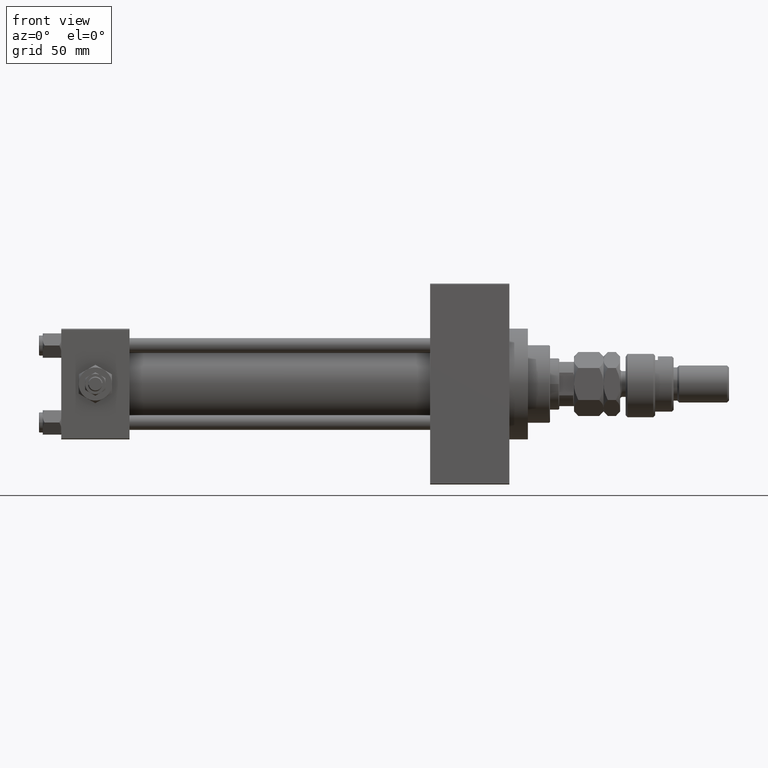
[diagram: clean part render]
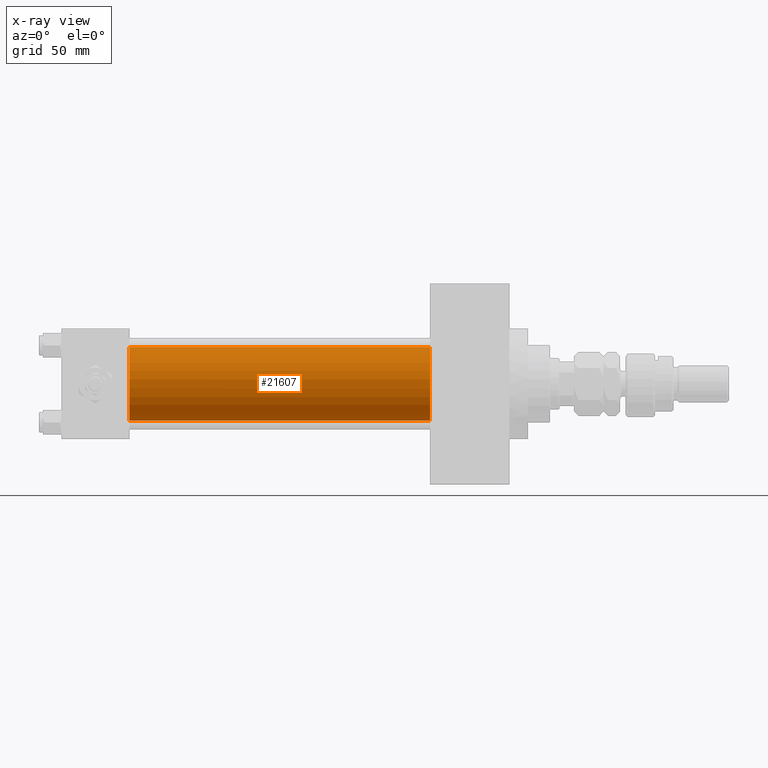
[diagram: x-ray — body ghosted, one internal face saturated and labeled with its STEP entity id]
A machine part, front view, then the same camera in x-ray: the body is ghosted and one INTERNAL B-rep face — a face not visible from any outside direction — is saturated and labeled: STEP entity #21607.
In plain terms, the highlighted cylindrical surface (partial cylindrical patch) has radius 20 mm, axis along (-1, -0, -0).
Its self-contained STEP definition (entity closure, byte-faithful):
#339 = CARTESIAN_POINT ( 'NONE',  ( 37.00000000000000000, -1.527916156705042519E-16, -20.00000000000000000 ) ) ;
#985 = VECTOR ( 'NONE', #46103, 1000.000000000000000 ) ;
#1746 = CARTESIAN_POINT ( 'NONE',  ( 200.0000000000000000, -2.602085213965210642E-15, 0.000000000000000000 ) ) ;
#4858 = VERTEX_POINT ( 'NONE', #16430 ) ;
#10012 = DIRECTION ( 'NONE',  ( -1.000000000000000000, -0.000000000000000000, -0.000000000000000000 ) ) ;
#10539 = CARTESIAN_POINT ( 'NONE',  ( 200.0000000000000000, -2.602085213965210642E-15, 20.00000000000000000 ) ) ;
#10612 = AXIS2_PLACEMENT_3D ( 'NONE', #18550, #26405, #19069 ) ;
#10930 = CARTESIAN_POINT ( 'NONE',  ( 37.00000000000000000, -2.602085213965210642E-15, 20.00000000000000000 ) ) ;
#15232 = ORIENTED_EDGE ( 'NONE', *, *, #41584, .F. ) ;
#16380 = EDGE_CURVE ( 'NONE', #4858, #19784, #17576, .T. ) ;
#16430 = CARTESIAN_POINT ( 'NONE',  ( 200.0000000000000000, -2.602085213965210642E-15, 20.00000000000000000 ) ) ;
#17163 = VECTOR ( 'NONE', #10012, 1000.000000000000000 ) ;
#17169 = ORIENTED_EDGE ( 'NONE', *, *, #34937, .F. ) ;
#17576 = CIRCLE ( 'NONE', #40932, 20.00000000000000000 ) ;
#17614 = DIRECTION ( 'NONE',  ( 1.000000000000000000, 0.000000000000000000, 0.000000000000000000 ) ) ;
#18550 = CARTESIAN_POINT ( 'NONE',  ( 37.00000000000000000, -2.602085213965210642E-15, 0.000000000000000000 ) ) ;
#19069 = DIRECTION ( 'NONE',  ( 0.000000000000000000, 0.000000000000000000, -1.000000000000000000 ) ) ;
#19784 = VERTEX_POINT ( 'NONE', #40466 ) ;
#20166 = EDGE_CURVE ( 'NONE', #19784, #30432, #45318, .T. ) ;
#21560 = FACE_OUTER_BOUND ( 'NONE', #24502, .T. ) ;
#21607 = ADVANCED_FACE ( 'NONE', ( #21560 ), #37481, .F. ) ;
#24502 = EDGE_LOOP ( 'NONE', ( #44610, #44762, #15232, #17169 ) ) ;
#25217 = AXIS2_PLACEMENT_3D ( 'NONE', #1746, #33572, #49711 ) ;
#26405 = DIRECTION ( 'NONE',  ( 1.000000000000000000, 0.000000000000000000, 0.000000000000000000 ) ) ;
#30432 = VERTEX_POINT ( 'NONE', #339 ) ;
#33572 = DIRECTION ( 'NONE',  ( -1.000000000000000000, -0.000000000000000000, -0.000000000000000000 ) ) ;
#34389 = VERTEX_POINT ( 'NONE', #10930 ) ;
#34937 = EDGE_CURVE ( 'NONE', #4858, #34389, #38203, .T. ) ;
#37451 = CARTESIAN_POINT ( 'NONE',  ( 200.0000000000000000, -2.602085213965210642E-15, 0.000000000000000000 ) ) ;
#37481 = CYLINDRICAL_SURFACE ( 'NONE', #25217, 20.00000000000000000 ) ;
#38203 = LINE ( 'NONE', #10539, #17163 ) ;
#40466 = CARTESIAN_POINT ( 'NONE',  ( 200.0000000000000000, -1.527916156705042519E-16, -20.00000000000000000 ) ) ;
#40932 = AXIS2_PLACEMENT_3D ( 'NONE', #37451, #17614, #50204 ) ;
#41584 = EDGE_CURVE ( 'NONE', #34389, #30432, #50589, .T. ) ;
#44610 = ORIENTED_EDGE ( 'NONE', *, *, #16380, .T. ) ;
#44762 = ORIENTED_EDGE ( 'NONE', *, *, #20166, .T. ) ;
#45318 = LINE ( 'NONE', #49235, #985 ) ;
#46103 = DIRECTION ( 'NONE',  ( -1.000000000000000000, -0.000000000000000000, -0.000000000000000000 ) ) ;
#49235 = CARTESIAN_POINT ( 'NONE',  ( 200.0000000000000000, -1.527916156705042519E-16, -20.00000000000000000 ) ) ;
#49711 = DIRECTION ( 'NONE',  ( 0.000000000000000000, 0.000000000000000000, 1.000000000000000000 ) ) ;
#50204 = DIRECTION ( 'NONE',  ( 0.000000000000000000, 0.000000000000000000, -1.000000000000000000 ) ) ;
#50589 = CIRCLE ( 'NONE', #10612, 20.00000000000000000 ) ;